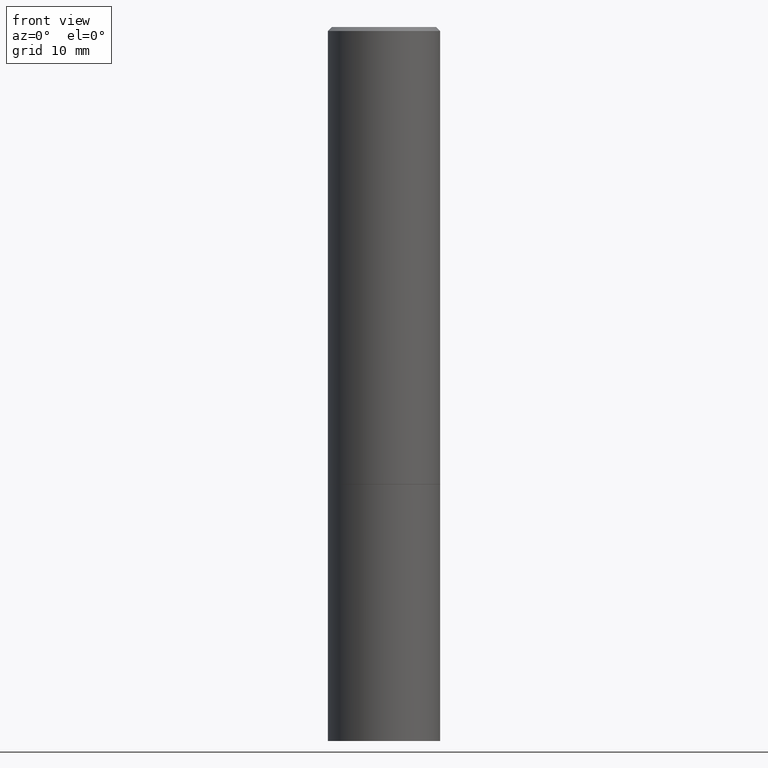
[diagram: clean part render]
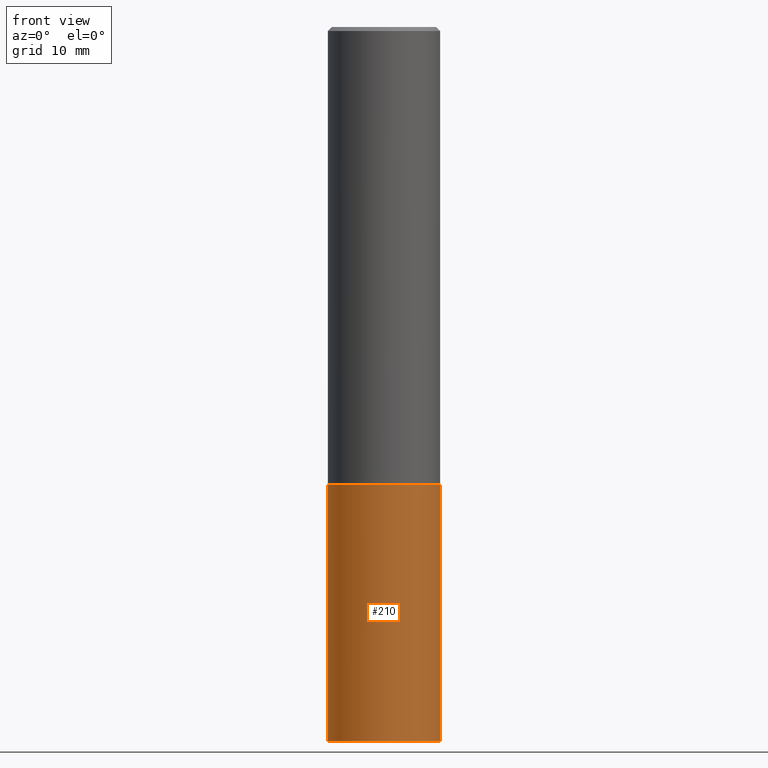
[diagram: same view with one face highlighted and labeled with its STEP entity id]
A machine part, front view. The second image highlights one B-rep face of the part: STEP entity #210.
In plain terms, the highlighted cylindrical surface (partial cylindrical patch) has radius 7.0002 mm, axis along (-0, 0, 1).
Its self-contained STEP definition (entity closure, byte-faithful):
#14 = CARTESIAN_POINT ( 'NONE',  ( 0.000000000000000000, 0.000000000000000000, 0.000000000000000000 ) ) ;
#15 = ORIENTED_EDGE ( 'NONE', *, *, #141, .F. ) ;
#16 = DIRECTION ( 'NONE',  ( 1.000000000000000000, -6.982962677686267499E-15, 4.876176775795935793E-29 ) ) ;
#23 = DIRECTION ( 'NONE',  ( -2.445468806185136597E-29, 3.491481338843145583E-15, 1.000000000000000000 ) ) ;
#27 = AXIS2_PLACEMENT_3D ( 'NONE', #246, #148, #87 ) ;
#33 = CARTESIAN_POINT ( 'NONE',  ( 0.2756000000000000116, -9.759737786468235716E-15, -2.244099999999999540 ) ) ;
#39 = EDGE_CURVE ( 'NONE', #295, #97, #199, .T. ) ;
#51 = CIRCLE ( 'NONE', #162, 0.2756000000000000116 ) ;
#55 = CARTESIAN_POINT ( 'NONE',  ( -0.2756000000000000116, -8.076261588080363510E-15, -3.503899999999999793 ) ) ;
#56 = DIRECTION ( 'NONE',  ( 1.000000000000000000, -6.982962677686265922E-15, 0.000000000000000000 ) ) ;
#81 = LINE ( 'NONE', #229, #206 ) ;
#82 = AXIS2_PLACEMENT_3D ( 'NONE', #14, #23, #16 ) ;
#87 = DIRECTION ( 'NONE',  ( 1.000000000000000000, -6.982962677686265922E-15, 0.000000000000000000 ) ) ;
#89 = EDGE_CURVE ( 'NONE', #97, #340, #94, .T. ) ;
#91 = ORIENTED_EDGE ( 'NONE', *, *, #89, .T. ) ;
#94 = LINE ( 'NONE', #314, #267 ) ;
#97 = VERTEX_POINT ( 'NONE', #271 ) ;
#125 = CARTESIAN_POINT ( 'NONE',  ( -0.2756000000000000116, -8.076261588080363510E-15, -2.244099999999999540 ) ) ;
#141 = EDGE_CURVE ( 'NONE', #227, #340, #51, .T. ) ;
#148 = DIRECTION ( 'NONE',  ( -2.445468806185136597E-29, 3.491481338843145583E-15, 1.000000000000000000 ) ) ;
#149 = EDGE_LOOP ( 'NONE', ( #297, #224, #91, #15 ) ) ;
#162 = AXIS2_PLACEMENT_3D ( 'NONE', #318, #290, #56 ) ;
#176 = EDGE_CURVE ( 'NONE', #295, #227, #81, .T. ) ;
#197 = FACE_OUTER_BOUND ( 'NONE', #149, .T. ) ;
#199 = CIRCLE ( 'NONE', #27, 0.2756000000000000116 ) ;
#206 = VECTOR ( 'NONE', #256, 39.37007874015748143 ) ;
#210 = ADVANCED_FACE ( 'NONE', ( #197 ), #306, .T. ) ;
#224 = ORIENTED_EDGE ( 'NONE', *, *, #39, .T. ) ;
#227 = VERTEX_POINT ( 'NONE', #125 ) ;
#229 = CARTESIAN_POINT ( 'NONE',  ( -0.2756000000000000116, 1.958255779754836195E-15, -1.355658510874252007E-29 ) ) ;
#246 = CARTESIAN_POINT ( 'NONE',  ( 8.568678149992099474E-29, -1.223380146317249786E-14, -3.503899999999999793 ) ) ;
#256 = DIRECTION ( 'NONE',  ( -2.445468806185136877E-29, 3.491481338843145188E-15, 1.000000000000000000 ) ) ;
#263 = DIRECTION ( 'NONE',  ( -2.445468806185136877E-29, 3.491481338843145188E-15, 1.000000000000000000 ) ) ;
#267 = VECTOR ( 'NONE', #263, 39.37007874015748143 ) ;
#271 = CARTESIAN_POINT ( 'NONE',  ( 0.2756000000000000116, -1.415830597714283281E-14, -3.503899999999999793 ) ) ;
#290 = DIRECTION ( 'NONE',  ( -2.445468806185136597E-29, 3.491481338843145583E-15, 1.000000000000000000 ) ) ;
#295 = VERTEX_POINT ( 'NONE', #55 ) ;
#297 = ORIENTED_EDGE ( 'NONE', *, *, #176, .F. ) ;
#306 = CYLINDRICAL_SURFACE ( 'NONE', #82, 0.2756000000000000116 ) ;
#314 = CARTESIAN_POINT ( 'NONE',  ( 0.2756000000000000116, -1.924504513970335348E-15, 1.343874319409359987E-29 ) ) ;
#318 = CARTESIAN_POINT ( 'NONE',  ( 5.487876547960063631E-29, -7.835233272497900762E-15, -2.244099999999999540 ) ) ;
#340 = VERTEX_POINT ( 'NONE', #33 ) ;